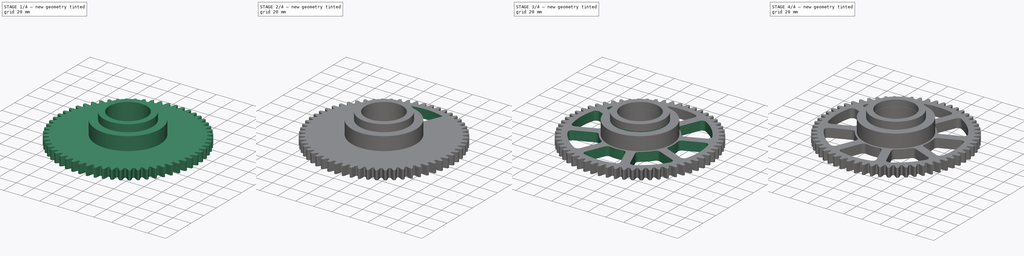
[diagram: build sequence overview — one tinted view per stage of 4, left to right]
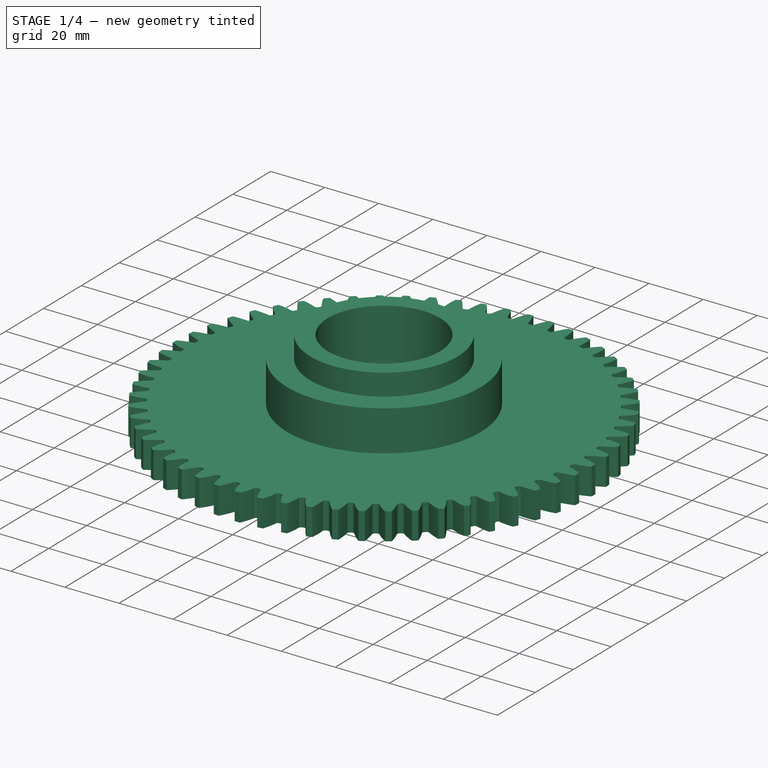
[diagram: stage 1 of 4 — iso view after this stage's code; geometry added in this stage tinted green]
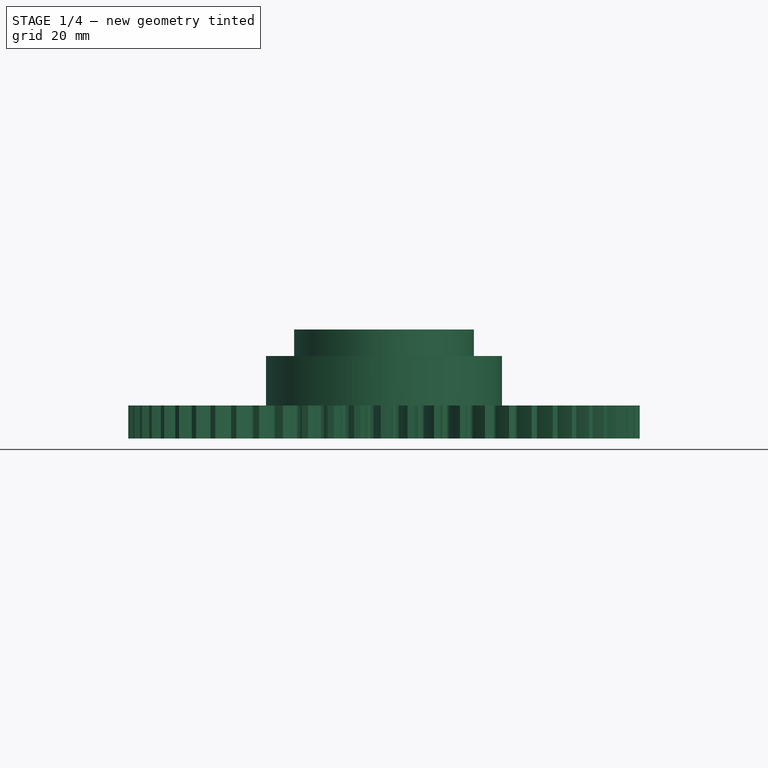
[diagram: stage 1 of 4 — front view after this stage's code; geometry added in this stage tinted green]
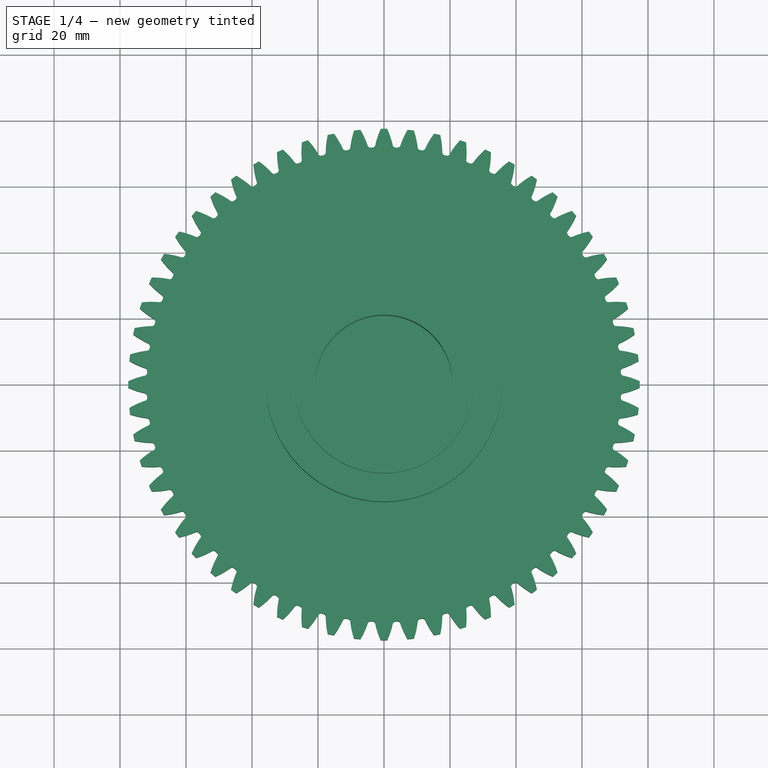
[diagram: stage 1 of 4 — top view after this stage's code; geometry added in this stage tinted green]
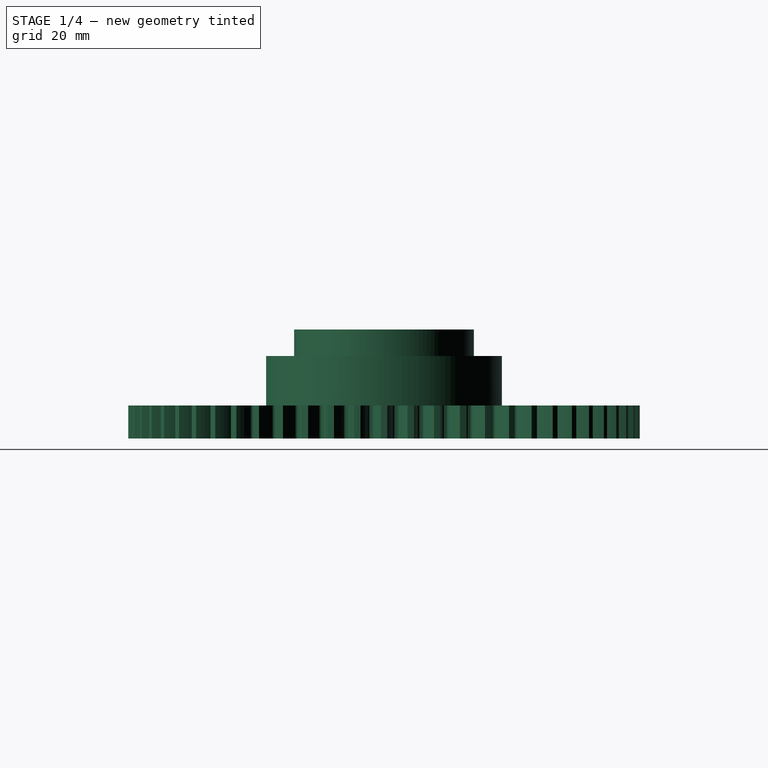
[diagram: stage 1 of 4 — right view after this stage's code; geometry added in this stage tinted green]
FCSTD DOCUMENT  (FreeCAD 0.19R)
Label: engrenagens
License: All rights reserved
LicenseURL: http://en.wikipedia.org/wiki/All_rights_reserved
objects: Sketcher::SketchObject×5, PartDesign::Pocket×3, PartDesign::Body×3, PartDesign::Revolution×2, Part::Part2DObjectPython×2, PartDesign::Pad×2, PartDesign::PolarPattern×1, PartDesign::Fillet×1
note: 27 computed .brp shape members not serialized (recipe doc carries the construction recipe); baked Part::Feature solids carry a one-line shape summary decoded from their .brp

FEATURE [Sketcher::SketchObject] Sketch
  FullyConstrained = true
  MapMode = 5
  Placement = pos=(0,0,0) rot=(1,0,0;1.5708rad)
  Support = -> [XZ_Plane]
  sketch-geometry (15):
    g0: LineSegment StartX=-35.75 StartY=0 StartZ=0 EndX=35.75 EndY=0 EndZ=0
    g1: LineSegment StartX=35.75 StartY=0 StartZ=0 EndX=35.75 EndY=15 EndZ=0
    g2: LineSegment StartX=35.75 StartY=15 StartZ=0 EndX=-35.75 EndY=15 EndZ=0
    g3: LineSegment StartX=-35.75 StartY=15 StartZ=0 EndX=-35.75 EndY=0 EndZ=0
    g4: LineSegment StartX=-27.25 StartY=15 StartZ=0 EndX=27.25 EndY=15 EndZ=0
    g5: LineSegment StartX=27.25 StartY=15 StartZ=0 EndX=27.25 EndY=23 EndZ=0
    g6: LineSegment StartX=27.25 StartY=23 StartZ=0 EndX=-27.25 EndY=23 EndZ=0
    g7: LineSegment StartX=-27.25 StartY=23 StartZ=0 EndX=-27.25 EndY=15 EndZ=0
    g8: LineSegment StartX=-20.75 StartY=23 StartZ=0 EndX=20.75 EndY=23 EndZ=0
    g9: LineSegment StartX=20.75 StartY=23 StartZ=0 EndX=20.75 EndY=0 EndZ=0
    g10: LineSegment StartX=20.75 StartY=0 StartZ=0 EndX=-20.75 EndY=0 EndZ=0
    g11: LineSegment StartX=-20.75 StartY=0 StartZ=0 EndX=-20.75 EndY=23 EndZ=0
    g12: LineSegment StartX=27.25 StartY=23 StartZ=0 EndX=20.75 EndY=23 EndZ=0
    g13: LineSegment StartX=35.75 StartY=0 StartZ=0 EndX=20.75 EndY=0 EndZ=0
    g14: LineSegment StartX=35.75 StartY=15 StartZ=0 EndX=27.25 EndY=15 EndZ=0
  constraints (39):
    c: Coincident(g0,g1)
    c: Coincident(g1,g2)
    c: Coincident(g2,g3)
    c: Coincident(g3,g0)
    c: Horizontal(g2)
    c: Vertical(g1)
    c: Vertical(g3)
    c: PointOnObject(g0,g-1)
    c: Symmetric(g0,g0,g-2)
    c: DistanceX(g0,g0) = 71.5
    c: DistanceY(g1,g1) = 15
    c: Coincident(g4,g5)
    c: Coincident(g5,g6)
    c: Coincident(g6,g7)
    c: Coincident(g7,g4)
    c: Horizontal(g6)
    c: Vertical(g5)
    c: Vertical(g7)
    c: PointOnObject(g4,g2)
    c: Symmetric(g4,g4,g-2)
    c: DistanceY(g7,g7) = 8
    c: DistanceX(g6,g6) = 54.5
    c: Coincident(g8,g9)
    c: Coincident(g9,g10)
    c: Coincident(g10,g11)
    c: Coincident(g11,g8)
    c: Horizontal(g8)
    c: Vertical(g9)
    c: Vertical(g11)
    c: PointOnObject(g8,g6)
    c: PointOnObject(g9,g0)
    c: Symmetric(g9,g10,g-2)
    c: DistanceX(g10,g9) = 41.5
    c: Coincident(g5,g12)
    c: Coincident(g12,g8)
    c: Coincident(g0,g13)
    c: Coincident(g13,g9)
    c: Coincident(g14,g1)
    c: Coincident(g14,g5)
FEATURE [PartDesign::Revolution] Revolution
  Angle = 360
  Axis = (0,-2e-16,1)
  Base = (0,0,0)
  Placement = pos=(0,0,0) rot=(1,0,0;1.5708rad)
  Profile = -> Sketch
  ReferenceAxis = -> Sketch [V_Axis]
  Reversed = true
FEATURE [Part::Part2DObjectPython] InvoluteGear  # Draft 2D object (typed FeaturePython)
  ExternalGear = true
  HighPrecision = true
  Modules = 2.5
  NumberOfTeeth = 60
  PressureAngle = 20
FEATURE [PartDesign::Pad] Pad
  BaseFeature = -> Revolution
  Direction = (1,1,1)
  Length = 10
  Length2 = 100
  Placement = pos=(0,0,0) rot=(1,0,0;1.5708rad)
  Profile = -> InvoluteGear
  Reversed = true
  Type = 0
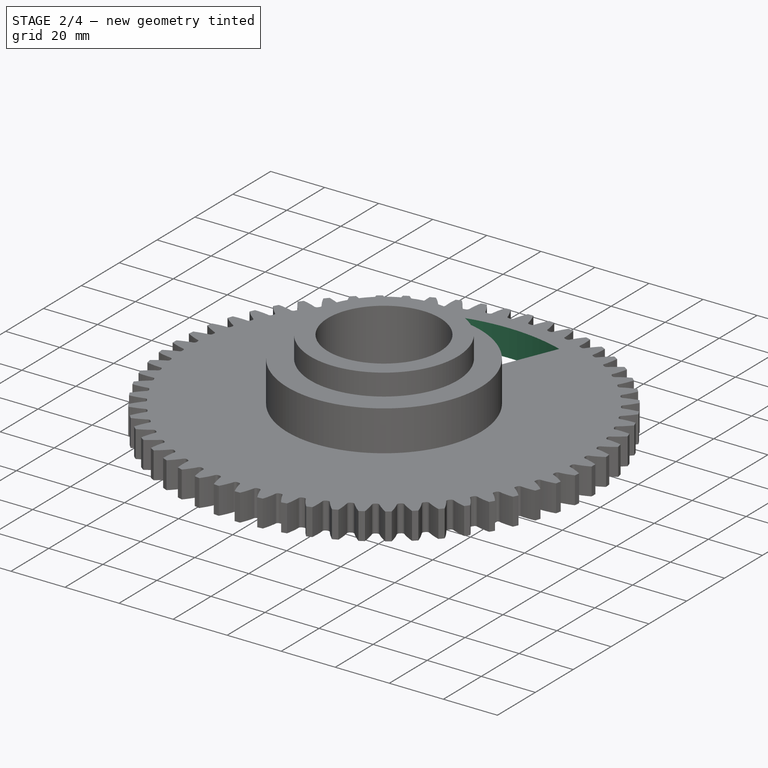
[diagram: stage 2 of 4 — iso view after this stage's code; geometry added in this stage tinted green]
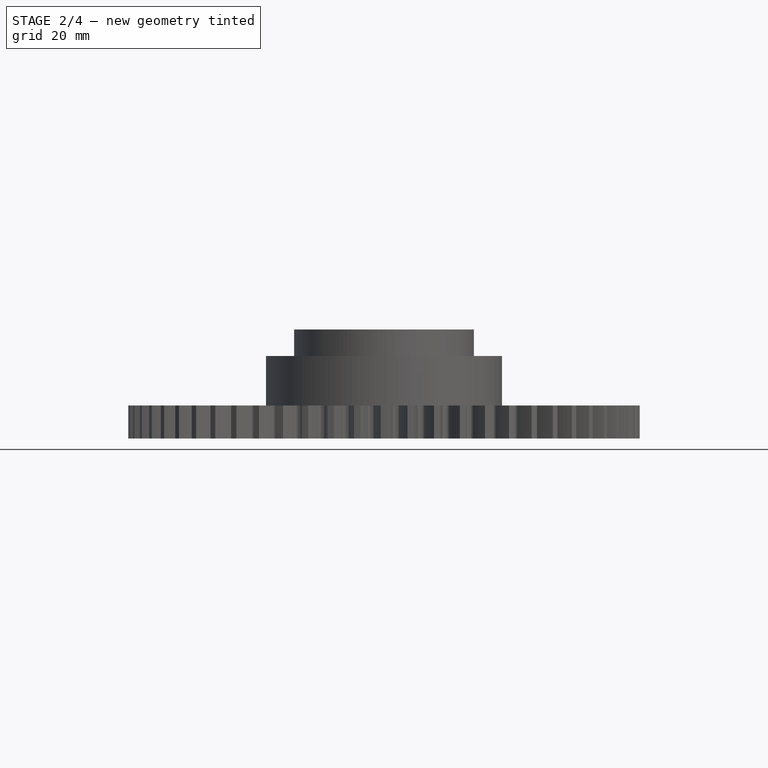
[diagram: stage 2 of 4 — front view after this stage's code; geometry added in this stage tinted green]
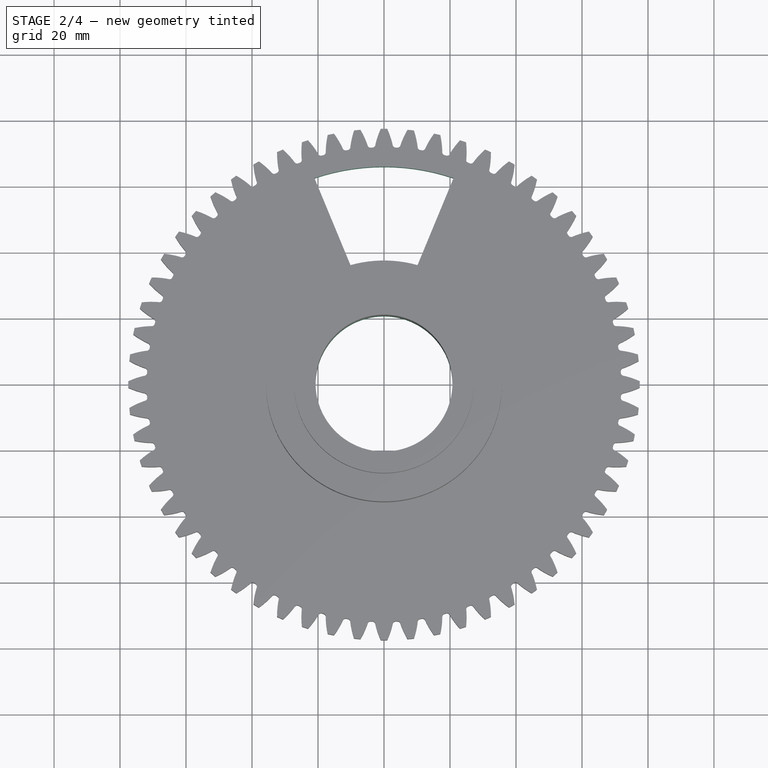
[diagram: stage 2 of 4 — top view after this stage's code; geometry added in this stage tinted green]
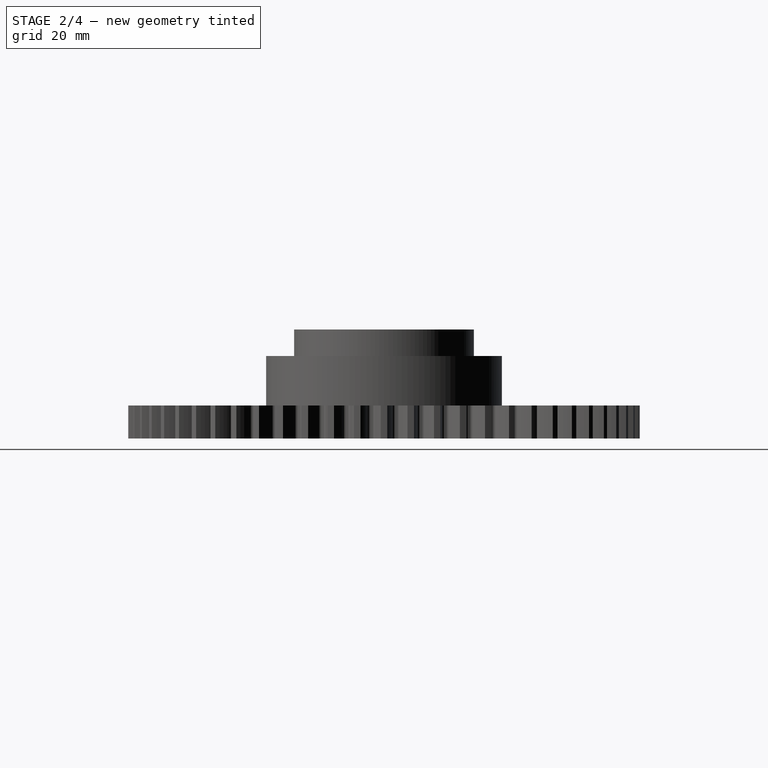
[diagram: stage 2 of 4 — right view after this stage's code; geometry added in this stage tinted green]
FEATURE [PartDesign::Pocket] Pocket
  BaseFeature = -> Pad
  Length = 5
  Length2 = 100
  Placement = pos=(0,0,0) rot=(1,0,0;1.5708rad)
  Profile = -> Pad [Face488]
  Type = 1
FEATURE [PartDesign::Body] Body001  label="pinhao"
  Group = -> [InvoluteGear001,Pad001,Sketch001,Pocket001]
  Origin = -> Origin001
  Placement = pos=(0.0728669,-85.7072,0) rot=(0,0,1;0.401426rad)
  Tip = -> Pocket001
FEATURE [Sketcher::SketchObject] Sketch002
  FullyConstrained = false
  MapMode = 5
  Support = -> [XY_Plane]
  sketch-geometry (6):
    g0: LineSegment StartX=0 StartY=0 StartZ=0 EndX=-25.2449 EndY=60.9466 EndZ=0
    g1: LineSegment StartX=0 StartY=0 StartZ=0 EndX=25.2449 EndY=60.9466 EndZ=0
    g2: ArcOfCircle CenterX=0 CenterY=0 CenterZ=0 NormalX=0 NormalY=0 NormalZ=1 AngleXU=0 Radius=65.9682 StartAngle=1.24565 EndAngle=1.89594
    g3: ArcOfCircle CenterX=0 CenterY=0 CenterZ=0 NormalX=0 NormalY=0 NormalZ=1 AngleXU=0 Radius=37.5536 StartAngle=1.29696 EndAngle=1.84463
    g4: LineSegment StartX=-10.1555 StartY=36.1544 StartZ=0 EndX=-21.0731 EndY=62.5118 EndZ=0
    g5: LineSegment StartX=10.1555 StartY=36.1544 StartZ=0 EndX=21.0731 EndY=62.5118 EndZ=0
  constraints (14):
    c: Coincident(g0,g-1)
    c: Coincident(g1,g-1)
    c: Angle(g1,g0) = 0.785398
    c: Symmetric(g1,g0,g-2)
    c: Coincident(g2,g-1)
    c: Coincident(g3,g2)
    c: Coincident(g4,g3)
    c: Coincident(g4,g2)
    c: Parallel(g4,g0)
    c: Coincident(g5,g3)
    c: Coincident(g5,g2)
    c: Parallel(g1,g5)
    c: Symmetric(g2,g2,g-2)
    c: PointOnObject(g1,g2)
FEATURE [PartDesign::Pocket] Pocket002
  BaseFeature = -> Pocket
  Length = 5
  Length2 = 100
  Placement = pos=(0,0,0) rot=(1,0,0;1.5708rad)
  Profile = -> Sketch002
  Type = 1
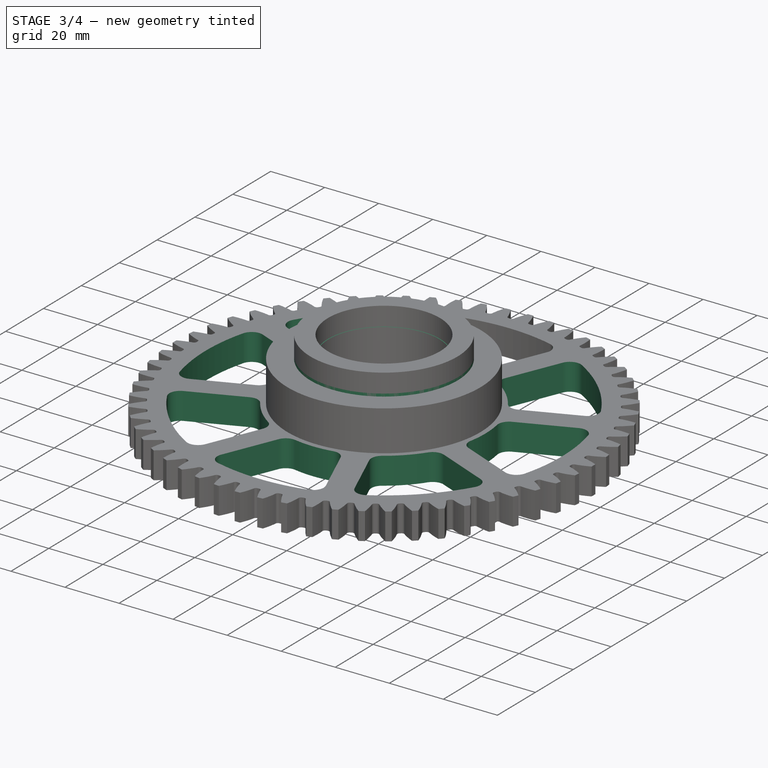
[diagram: stage 3 of 4 — iso view after this stage's code; geometry added in this stage tinted green]
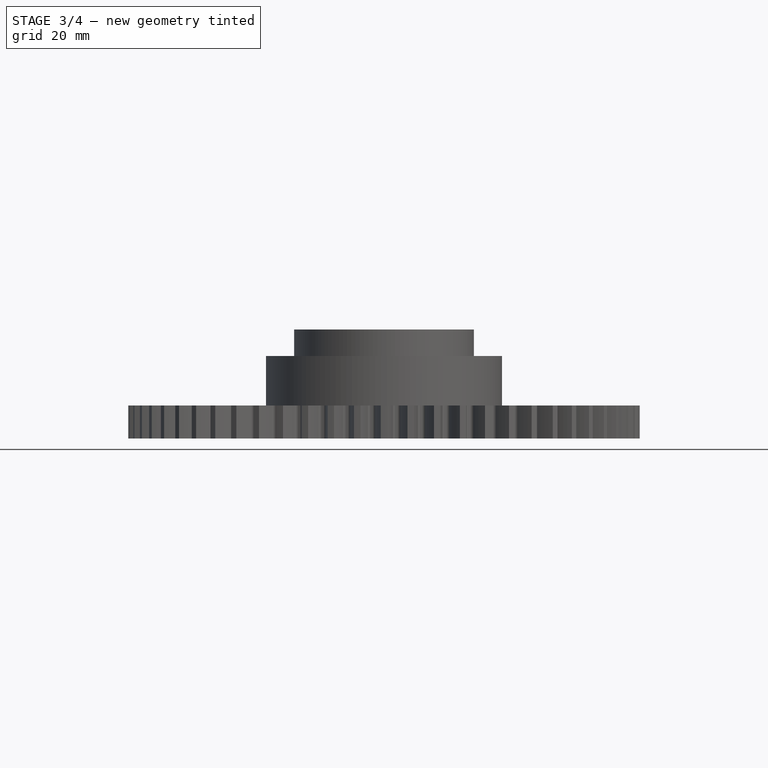
[diagram: stage 3 of 4 — front view after this stage's code; geometry added in this stage tinted green]
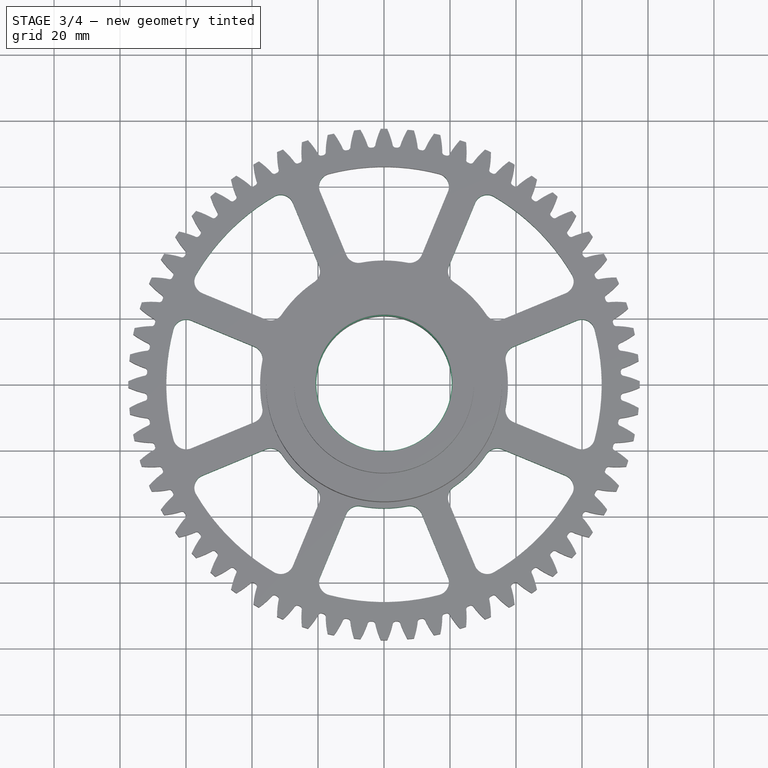
[diagram: stage 3 of 4 — top view after this stage's code; geometry added in this stage tinted green]
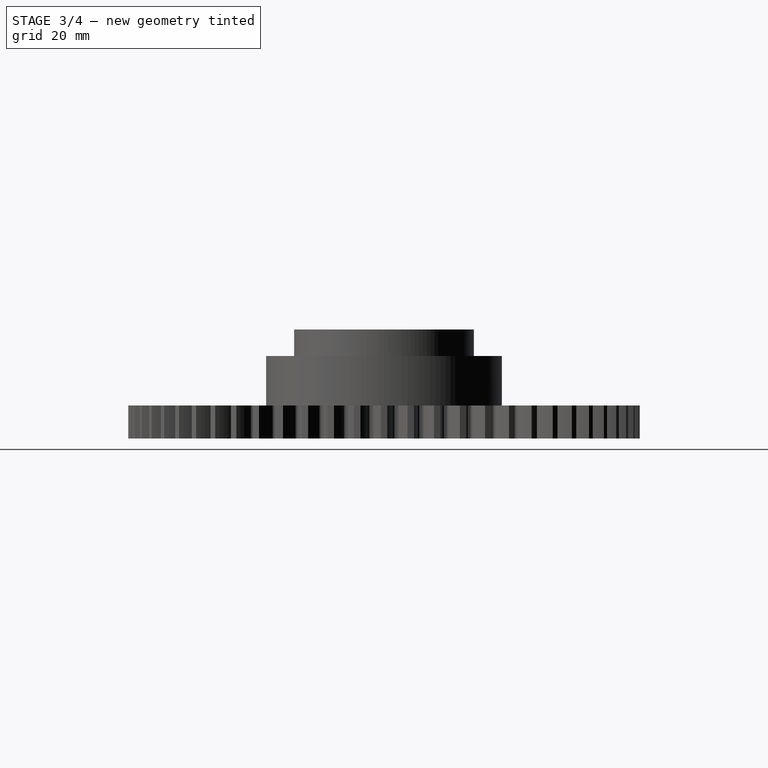
[diagram: stage 3 of 4 — right view after this stage's code; geometry added in this stage tinted green]
FEATURE [Sketcher::SketchObject] Sketch003
  FullyConstrained = false
  MapMode = 5
  Support = -> [XY_Plane]
  sketch-geometry (2):
    g0: Circle CenterX=0 CenterY=0 CenterZ=0 NormalX=0 NormalY=0 NormalZ=1 AngleXU=0 Radius=37.8351
    g1: Circle CenterX=0 CenterY=0 CenterZ=0 NormalX=0 NormalY=0 NormalZ=1 AngleXU=0 Radius=66.0198
  constraints (2):
    c: Coincident(g0,g-1)
    c: Coincident(g1,g0)
FEATURE [Sketcher::SketchObject] Sketch004
  FullyConstrained = true
  MapMode = 5
  Placement = pos=(0,0,0) rot=(1,0,0;1.5708rad)
  Support = -> [XZ_Plane002]
  sketch-geometry (15):
    g0: LineSegment StartX=-35.75 StartY=0 StartZ=0 EndX=35.75 EndY=0 EndZ=0
    g1: LineSegment StartX=35.75 StartY=0 StartZ=0 EndX=35.75 EndY=8 EndZ=0
    g2: LineSegment StartX=35.75 StartY=8 StartZ=0 EndX=-35.75 EndY=8 EndZ=0
    g3: LineSegment StartX=-35.75 StartY=8 StartZ=0 EndX=-35.75 EndY=0 EndZ=0
    g4: LineSegment StartX=-27.25 StartY=8 StartZ=0 EndX=27.25 EndY=8 EndZ=0
    g5: LineSegment StartX=27.25 StartY=8 StartZ=0 EndX=27.25 EndY=16 EndZ=0
    g6: LineSegment StartX=27.25 StartY=16 StartZ=0 EndX=-27.25 EndY=16 EndZ=0
    g7: LineSegment StartX=-27.25 StartY=16 StartZ=0 EndX=-27.25 EndY=8 EndZ=0
    g8: LineSegment StartX=-20.5 StartY=16 StartZ=0 EndX=20.5 EndY=16 EndZ=0
    g9: LineSegment StartX=20.5 StartY=16 StartZ=0 EndX=20.5 EndY=0 EndZ=0
    g10: LineSegment StartX=20.5 StartY=0 StartZ=0 EndX=-20.5 EndY=0 EndZ=0
    g11: LineSegment StartX=-20.5 StartY=0 StartZ=0 EndX=-20.5 EndY=16 EndZ=0
    g12: LineSegment StartX=27.25 StartY=16 StartZ=0 EndX=20.5 EndY=16 EndZ=0
    g13: LineSegment StartX=35.75 StartY=0 StartZ=0 EndX=20.5 EndY=0 EndZ=0
    g14: LineSegment StartX=35.75 StartY=8 StartZ=0 EndX=27.25 EndY=8 EndZ=0
  constraints (39):
    c: Coincident(g0,g1)
    c: Coincident(g1,g2)
    c: Coincident(g2,g3)
    c: Coincident(g3,g0)
    c: Horizontal(g2)
    c: Vertical(g1)
    c: Vertical(g3)
    c: PointOnObject(g0,g-1)
    c: Symmetric(g0,g0,g-2)
    c: DistanceX(g0,g0) = 71.5
    c: DistanceY(g1,g1) = 8
    c: Coincident(g4,g5)
    c: Coincident(g5,g6)
    c: Coincident(g6,g7)
    c: Coincident(g7,g4)
    c: Horizontal(g6)
    c: Vertical(g5)
    c: Vertical(g7)
    c: PointOnObject(g4,g2)
    c: Symmetric(g4,g4,g-2)
    c: DistanceY(g7,g7) = 8
    c: DistanceX(g6,g6) = 54.5
    c: Coincident(g8,g9)
    c: Coincident(g9,g10)
    c: Coincident(g10,g11)
    c: Coincident(g11,g8)
    c: Horizontal(g8)
    c: Vertical(g9)
    c: Vertical(g11)
    c: PointOnObject(g8,g6)
    c: PointOnObject(g9,g0)
    c: Symmetric(g9,g10,g-2)
    c: DistanceX(g10,g9) = 41
    c: Coincident(g5,g12)
    c: Coincident(g12,g8)
    c: Coincident(g0,g13)
    c: Coincident(g13,g9)
    c: Coincident(g14,g1)
    c: Coincident(g14,g5)
FEATURE [PartDesign::Revolution] Revolution001
  Angle = 360
  Axis = (0,-2e-16,1)
  Base = (0,0,0)
  Placement = pos=(0,0,0) rot=(1,0,0;1.5708rad)
  Profile = -> Sketch004
  ReferenceAxis = -> Sketch004 [V_Axis]
  Reversed = true
FEATURE [PartDesign::Body] Body002  label="tampa"
  Group = -> [Sketch004,Revolution001]
  Origin = -> Origin002
  Tip = -> Revolution001
FEATURE [PartDesign::PolarPattern] PolarPattern
  Angle = 360
  Axis = -> Sketch002 [N_Axis]
  BaseFeature = -> Pocket002
  Occurrences = 8
  Originals = -> [Pocket002]
  Placement = pos=(0,0,0) rot=(1,0,0;1.5708rad)
FEATURE [PartDesign::Fillet] Fillet
  Base = -> PolarPattern [Edge1519,Edge1520,Edge1525,Edge1526,Edge1523,Edge1524,Edge1535,Edge1536,Edge1534,Edge1540,Edge1539,Edge1533,Edge1531,Edge1538,Edge1537,Edge1532,Edge1530,Edge1529,Edge1518,Edge1517,Edge1516,Edge1515,Edge1514,Edge1513,Edge1512,Edge1511,Edge1510,Edge1509,Edge1507,Edge1522,Edge1508,Edge1521]
  BaseFeature = -> PolarPattern
  Placement = pos=(0,0,0) rot=(1,0,0;1.5708rad)
  Radius = 4
  SupportTransform = false
FEATURE [PartDesign::Body] Body  label="grande"
  Group = -> [Sketch,Revolution,InvoluteGear,Pad,Pocket,Sketch002,Pocket002,Sketch003,PolarPattern,Fillet]
  Origin = -> Origin
  Tip = -> Fillet
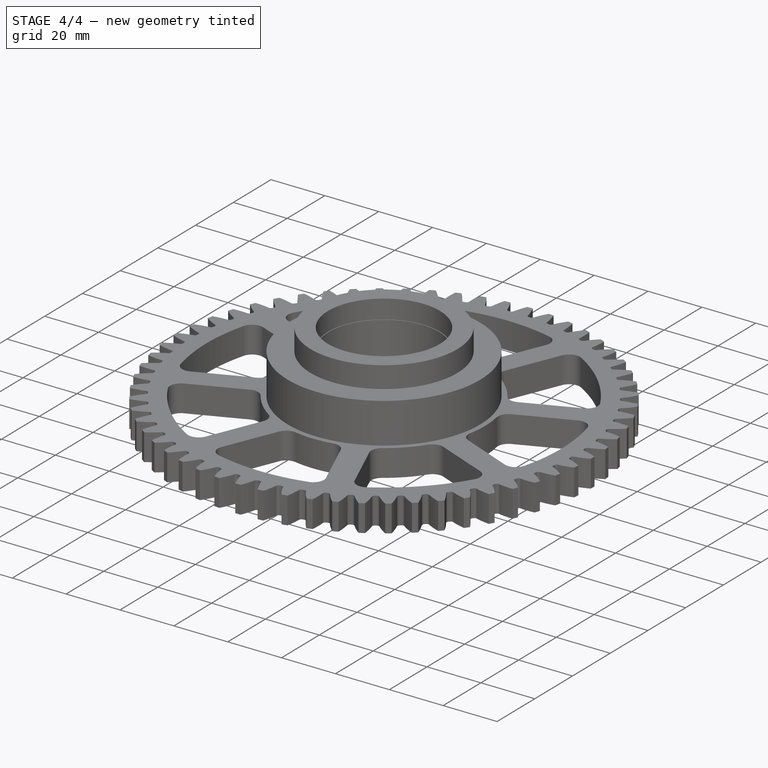
[diagram: stage 4 of 4 — iso view after this stage's code; geometry added in this stage tinted green]
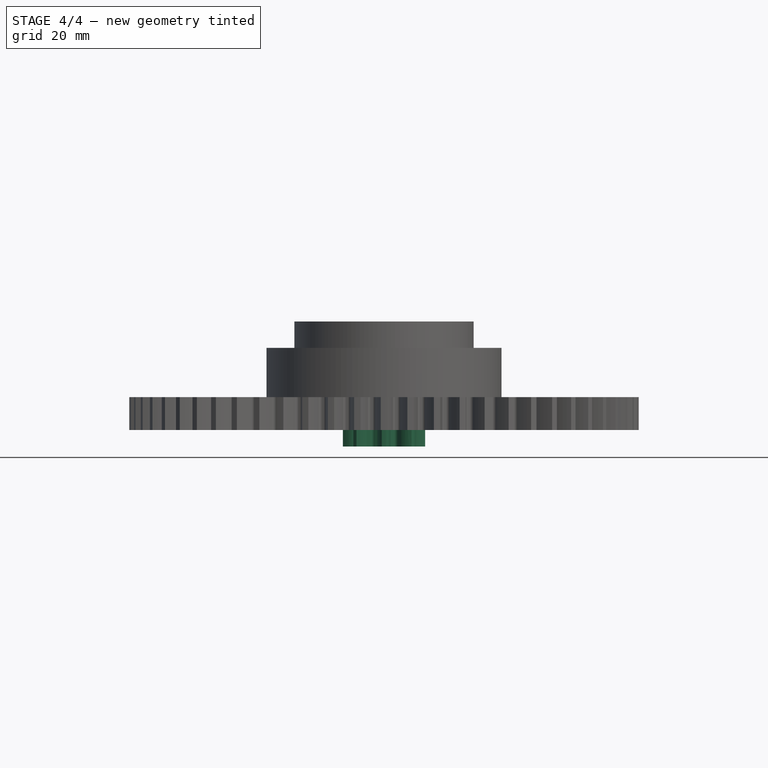
[diagram: stage 4 of 4 — front view after this stage's code; geometry added in this stage tinted green]
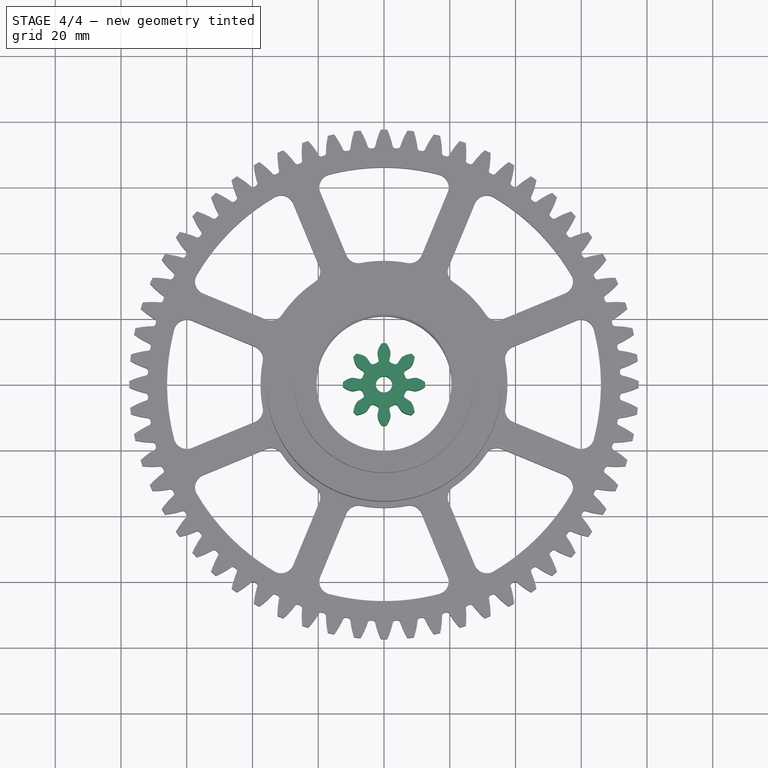
[diagram: stage 4 of 4 — top view after this stage's code; geometry added in this stage tinted green]
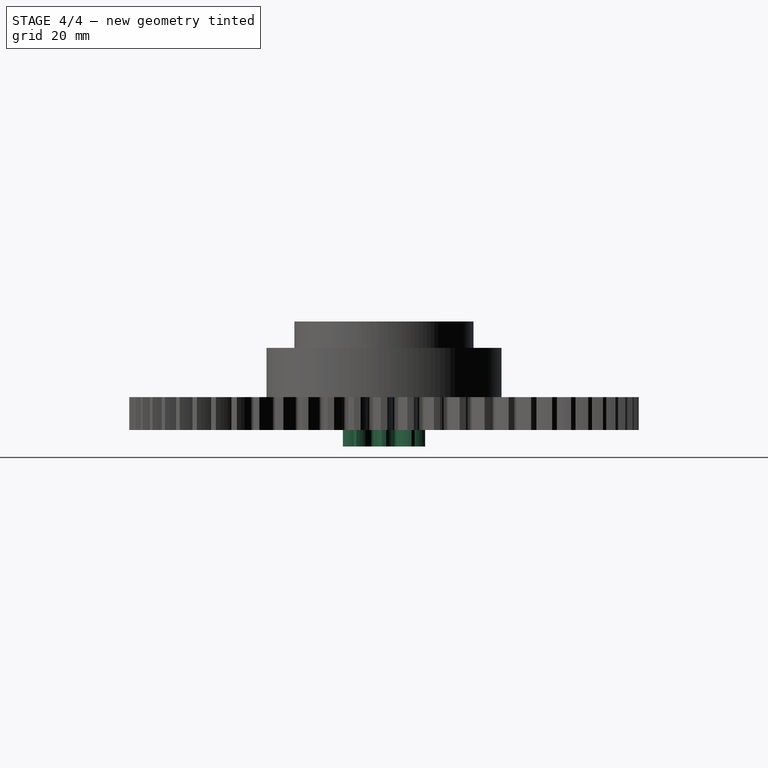
[diagram: stage 4 of 4 — right view after this stage's code; geometry added in this stage tinted green]
FEATURE [Part::Part2DObjectPython] InvoluteGear001  # Draft 2D object (typed FeaturePython)
  ExternalGear = true
  HighPrecision = true
  Modules = 2.5
  NumberOfTeeth = 8
  PressureAngle = 20
FEATURE [PartDesign::Pad] Pad001
  Direction = (1,1,1)
  Length = 15
  Length2 = 100
  Profile = -> InvoluteGear001
  Reversed = true
  Type = 0
FEATURE [Sketcher::SketchObject] Sketch001
  FullyConstrained = true
  MapMode = 5
  Support = -> [XY_Plane001]
  sketch-geometry (1):
    g0: Circle CenterX=0 CenterY=0 CenterZ=0 NormalX=0 NormalY=0 NormalZ=1 AngleXU=0 Radius=2.5
  constraints (2):
    c: Coincident(g0,g-1)
    c: Diameter(g0) = 5
FEATURE [PartDesign::Pocket] Pocket001
  BaseFeature = -> Pad001
  Length = 5
  Length2 = 100
  Profile = -> Sketch001
  Type = 1
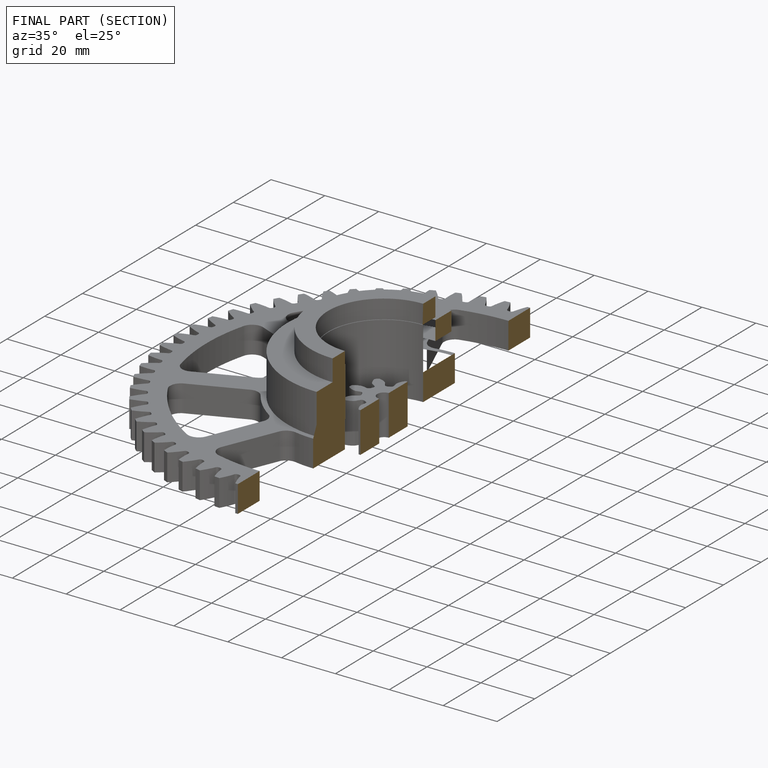
[diagram: finished part — half-section view (interior)]
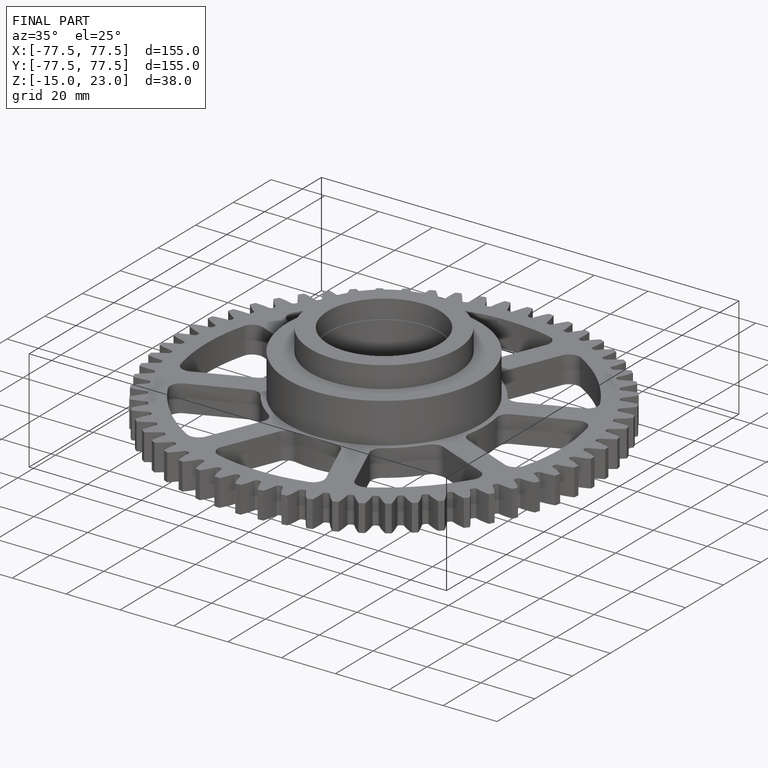
[diagram: finished part — iso view with bounding-box wireframe]
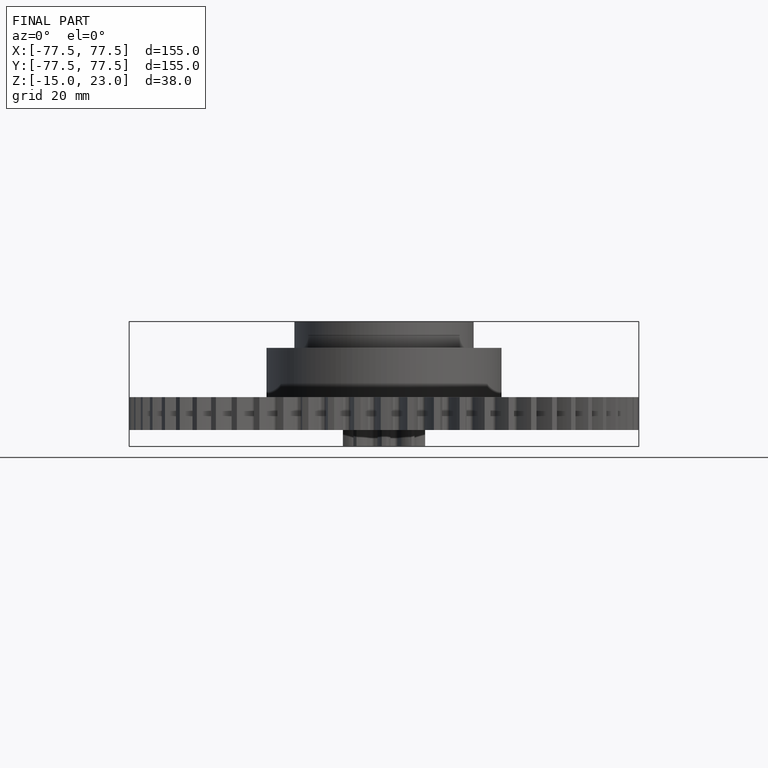
[diagram: finished part — front view with bounding-box wireframe]
